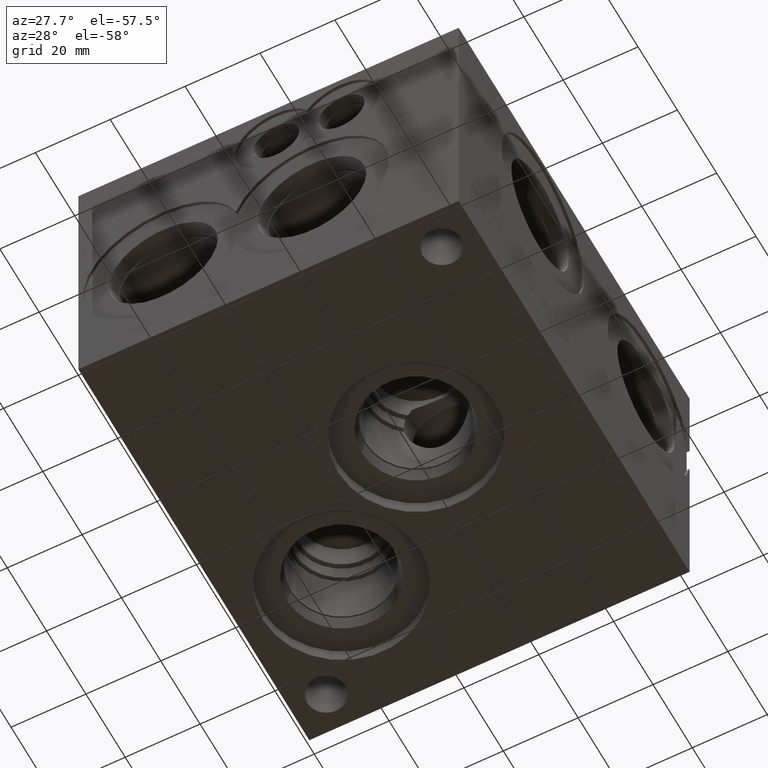
[diagram: clean part render]
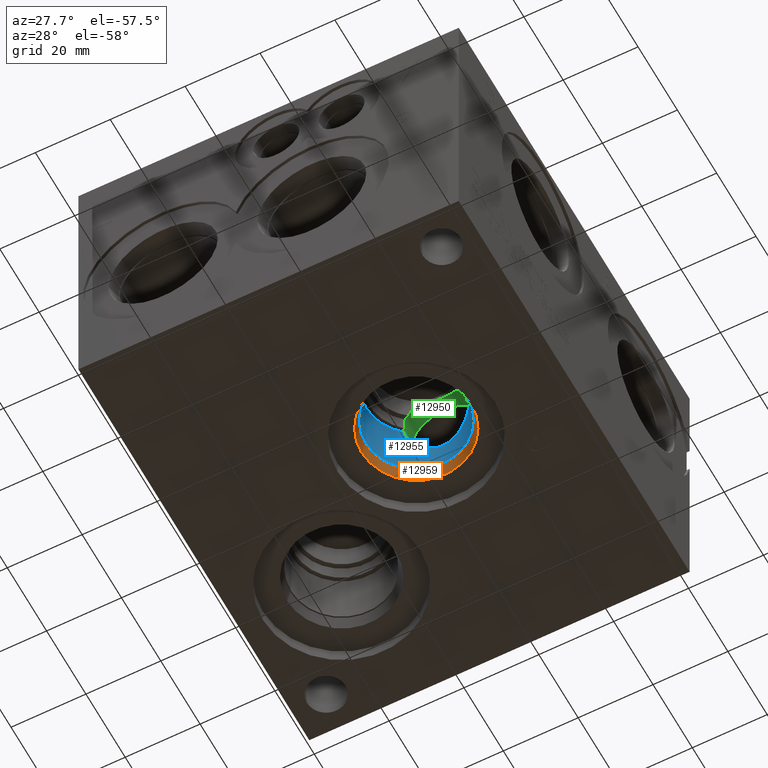
[diagram: same view with three faces highlighted in distinct colors, each labeled with its STEP entity id]
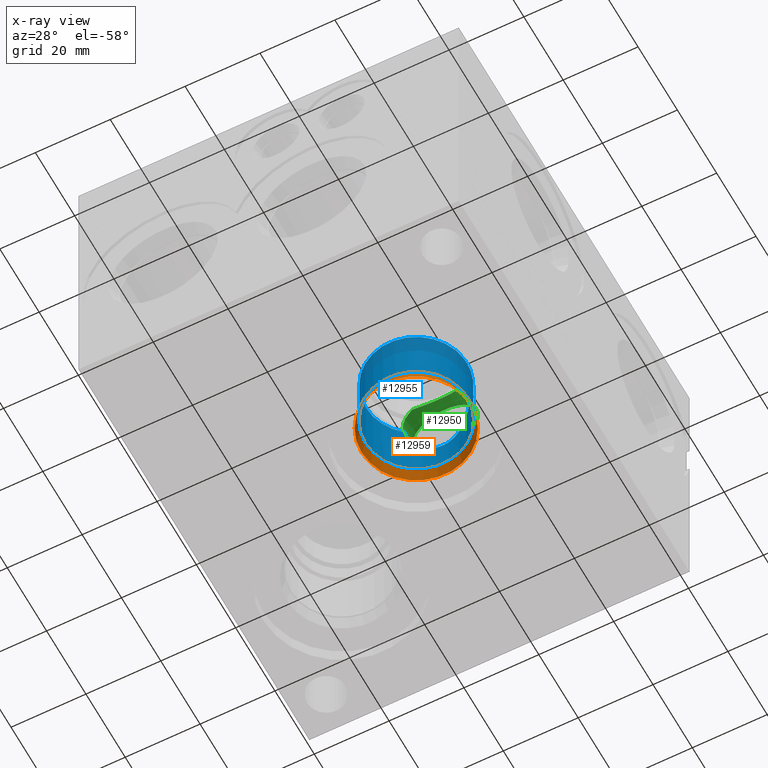
[diagram: x-ray of the same camera — body ghosted, the three highlighted faces saturated]
A machine part, auxiliary view with three faces highlighted in distinct colors.
The next image is the same camera in x-ray (body ghosted, the three faces saturated) — at least one of them is partly hidden behind the body in this view.
Their STEP definitions:

[orange] entity #12959 — the highlighted conical surface has half-angle 15.007 deg.
#94=CONICAL_SURFACE('',#13528,14.15415,0.261922137297759);
#177=CIRCLE('',#13526,14.5923);
#178=CIRCLE('',#13527,14.5923);
#179=CIRCLE('',#13529,13.716);
#180=CIRCLE('',#13530,13.716);
#1429=FACE_OUTER_BOUND('',#2149,.T.);
#2149=EDGE_LOOP('',(#10994,#10995,#10996,#10997,#10998,#10999));
#3457=LINE('',#21659,#4693);
#4693=VECTOR('',#15842,14.15415);
#6087=VERTEX_POINT('',#21653);
#6088=VERTEX_POINT('',#21654);
#6089=VERTEX_POINT('',#21658);
#6090=VERTEX_POINT('',#21660);
#7797=EDGE_CURVE('',#6087,#6088,#177,.T.);
#7798=EDGE_CURVE('',#6088,#6087,#178,.T.);
#7799=EDGE_CURVE('',#6088,#6089,#3457,.T.);
#7800=EDGE_CURVE('',#6089,#6090,#179,.T.);
#7801=EDGE_CURVE('',#6090,#6089,#180,.T.);
#10994=ORIENTED_EDGE('',*,*,#7797,.F.);
#10995=ORIENTED_EDGE('',*,*,#7798,.F.);
#10996=ORIENTED_EDGE('',*,*,#7799,.T.);
#10997=ORIENTED_EDGE('',*,*,#7800,.T.);
#10998=ORIENTED_EDGE('',*,*,#7801,.T.);
#10999=ORIENTED_EDGE('',*,*,#7799,.F.);
#12959=ADVANCED_FACE('',(#1429),#94,.F.);
#13526=AXIS2_PLACEMENT_3D('',#21655,#15836,#15837);
#13527=AXIS2_PLACEMENT_3D('',#21656,#15838,#15839);
#13528=AXIS2_PLACEMENT_3D('',#21657,#15840,#15841);
#13529=AXIS2_PLACEMENT_3D('',#21661,#15843,#15844);
#13530=AXIS2_PLACEMENT_3D('',#21662,#15845,#15846);
#15836=DIRECTION('center_axis',(0.,0.,1.));
#15837=DIRECTION('ref_axis',(1.,0.,0.));
#15838=DIRECTION('center_axis',(0.,0.,1.));
#15839=DIRECTION('ref_axis',(1.,0.,0.));
#15840=DIRECTION('center_axis',(0.,0.,-1.));
#15841=DIRECTION('ref_axis',(1.,0.,0.));
#15842=DIRECTION('',(0.258937610063224,3.17107115342792E-17,0.965894049104117));
#15843=DIRECTION('center_axis',(0.,0.,1.));
#15844=DIRECTION('ref_axis',(1.,0.,0.));
#15845=DIRECTION('center_axis',(0.,0.,1.));
#15846=DIRECTION('ref_axis',(1.,0.,0.));
#21653=CARTESIAN_POINT('',(76.5175,53.975,3.81));
#21654=CARTESIAN_POINT('',(47.3329,53.975,3.81));
#21655=CARTESIAN_POINT('Origin',(61.9252,53.975,3.81));
#21656=CARTESIAN_POINT('Origin',(61.9252,53.975,3.81));
#21657=CARTESIAN_POINT('Origin',(61.9252,53.975,5.44439555));
#21658=CARTESIAN_POINT('',(48.2092,53.975,7.0787911));
#21659=CARTESIAN_POINT('',(47.77105,53.975,5.44439555));
#21660=CARTESIAN_POINT('',(75.6412,53.975,7.0787911));
#21661=CARTESIAN_POINT('Origin',(61.9252,53.975,7.0787911));
#21662=CARTESIAN_POINT('Origin',(61.9252,53.975,7.0787911));

[blue] entity #12955 — the highlighted cylindrical surface (bore or boss wall) has radius 13.5001 mm, axis along (0, 0, -1).
#19=CYLINDRICAL_SURFACE('',#13519,13.5001);
#172=CIRCLE('',#13517,13.5001);
#173=CIRCLE('',#13518,13.5001);
#174=CIRCLE('',#13520,13.5001);
#1425=FACE_OUTER_BOUND('',#2144,.T.);
#2144=EDGE_LOOP('',(#10973,#10974,#10975,#10976,#10977,#10978));
#3455=LINE('',#21644,#4691);
#4691=VECTOR('',#15824,13.5001);
#5116=B_SPLINE_CURVE_WITH_KNOTS('',3,(#21575,#21576,#21577,#21578,#21579,
#21580,#21581,#21582,#21583,#21584,#21585,#21586,#21587,#21588,#21589,#21590,
#21591,#21592),.UNSPECIFIED.,.F.,.F.,(4,2,2,2,2,2,2,2,4),(0.0959618634930478,
0.343406973859113,0.686813947718226,1.02698033051328,1.36714671330834,1.7073130961034,
2.04747947889845,2.39088645275757,2.63833156312363),.UNSPECIFIED.);
#6076=VERTEX_POINT('',#21572);
#6077=VERTEX_POINT('',#21574);
#6083=VERTEX_POINT('',#21638);
#6084=VERTEX_POINT('',#21642);
#7778=EDGE_CURVE('',#6076,#6077,#5116,.T.);
#7790=EDGE_CURVE('',#6077,#6083,#172,.T.);
#7791=EDGE_CURVE('',#6083,#6076,#173,.T.);
#7792=EDGE_CURVE('',#6084,#6084,#174,.T.);
#7793=EDGE_CURVE('',#6084,#6083,#3455,.T.);
#10973=ORIENTED_EDGE('',*,*,#7792,.F.);
#10974=ORIENTED_EDGE('',*,*,#7793,.T.);
#10975=ORIENTED_EDGE('',*,*,#7790,.F.);
#10976=ORIENTED_EDGE('',*,*,#7778,.F.);
#10977=ORIENTED_EDGE('',*,*,#7791,.F.);
#10978=ORIENTED_EDGE('',*,*,#7793,.F.);
#12955=ADVANCED_FACE('',(#1425),#19,.F.);
#13517=AXIS2_PLACEMENT_3D('',#21639,#15816,#15817);
#13518=AXIS2_PLACEMENT_3D('',#21640,#15818,#15819);
#13519=AXIS2_PLACEMENT_3D('',#21641,#15820,#15821);
#13520=AXIS2_PLACEMENT_3D('',#21643,#15822,#15823);
#15816=DIRECTION('center_axis',(0.,0.,-1.));
#15817=DIRECTION('ref_axis',(1.,0.,0.));
#15818=DIRECTION('center_axis',(0.,0.,-1.));
#15819=DIRECTION('ref_axis',(1.,0.,0.));
#15820=DIRECTION('center_axis',(0.,0.,-1.));
#15821=DIRECTION('ref_axis',(1.,0.,0.));
#15822=DIRECTION('center_axis',(0.,0.,1.));
#15823=DIRECTION('ref_axis',(1.,0.,0.));
#15824=DIRECTION('',(0.,0.,1.));
#21572=CARTESIAN_POINT('',(53.2410740957999,64.3112786964168,22.86));
#21574=CARTESIAN_POINT('',(70.6093259042001,64.3112786964168,22.86));
#21575=CARTESIAN_POINT('Ctrl Pts',(53.2410740957999,64.3112786964168,22.86));
#21576=CARTESIAN_POINT('Ctrl Pts',(53.3334731132966,64.3889086370302,22.0286648348877));
#21577=CARTESIAN_POINT('Ctrl Pts',(53.5491929183386,64.5701936379758,21.2014063615222));
#21578=CARTESIAN_POINT('Ctrl Pts',(54.3227672111509,65.1450251675991,19.3654361316913));
#21579=CARTESIAN_POINT('Ctrl Pts',(54.9861785684347,65.5868248470164,18.4073890089741));
#21580=CARTESIAN_POINT('Ctrl Pts',(56.5002114888079,66.3661358733023,16.8933560886009));
#21581=CARTESIAN_POINT('Ctrl Pts',(57.4599560464925,66.7633398306517,16.2251192086186));
#21582=CARTESIAN_POINT('Ctrl Pts',(59.6045442094951,67.3202088128872,15.3214247406022));
#21583=CARTESIAN_POINT('Ctrl Pts',(60.7913120573498,67.4751,15.0876));
#21584=CARTESIAN_POINT('Ctrl Pts',(63.0590879426502,67.4751,15.0876));
#21585=CARTESIAN_POINT('Ctrl Pts',(64.2458557905048,67.3202088128872,15.3214247406022));
#21586=CARTESIAN_POINT('Ctrl Pts',(66.3904439535074,66.7633398306517,16.2251192086186));
#21587=CARTESIAN_POINT('Ctrl Pts',(67.3501885111921,66.3661358733023,16.8933560886009));
#21588=CARTESIAN_POINT('Ctrl Pts',(68.8642214315653,65.5868248470164,18.4073890089741));
#21589=CARTESIAN_POINT('Ctrl Pts',(69.5276327888491,65.1450251675991,19.3654361316913));
#21590=CARTESIAN_POINT('Ctrl Pts',(70.3012070816614,64.5701936379758,21.2014063615222));
#21591=CARTESIAN_POINT('Ctrl Pts',(70.5169268867034,64.3889086370302,22.0286648348877));
#21592=CARTESIAN_POINT('Ctrl Pts',(70.6093259042001,64.3112786964168,22.86));
#21638=CARTESIAN_POINT('',(48.4251,53.975,22.86));
#21639=CARTESIAN_POINT('Origin',(61.9252,53.975,22.86));
#21640=CARTESIAN_POINT('Origin',(61.9252,53.975,22.86));
#21641=CARTESIAN_POINT('Origin',(61.9252,53.975,11.43));
#21642=CARTESIAN_POINT('',(48.4251,53.975,7.3025));
#21643=CARTESIAN_POINT('Origin',(61.9252,53.975,7.3025));
#21644=CARTESIAN_POINT('',(48.4251,53.975,11.43));

[green] entity #12950 — the highlighted cylindrical surface (bore or boss wall) has radius 8.7376 mm, axis along (0, -1, 0).
#17=CYLINDRICAL_SURFACE('',#13505,8.7376);
#165=CIRCLE('',#13506,8.7376);
#166=CIRCLE('',#13507,8.7376);
#167=CIRCLE('',#13508,8.7376);
#168=CIRCLE('',#13509,8.7376);
#169=CIRCLE('',#13510,8.7376);
#1420=FACE_OUTER_BOUND('',#2139,.T.);
#2139=EDGE_LOOP('',(#10940,#10941,#10942,#10943,#10944,#10945,#10946,#10947,
#10948,#10949,#10950));
#3452=LINE('',#21569,#4688);
#3453=LINE('',#21573,#4689);
#3454=LINE('',#21594,#4690);
#4688=VECTOR('',#15795,8.7376);
#4689=VECTOR('',#15798,10.);
#4690=VECTOR('',#15799,10.);
#5114=B_SPLINE_CURVE_WITH_KNOTS('',3,(#21540,#21541,#21542,#21543,#21544,
#21545,#21546,#21547,#21548,#21549,#21550,#21551,#21552,#21553),
 .UNSPECIFIED.,.F.,.F.,(4,2,2,2,2,2,4),(3.49413911466993,3.49884400661786,
3.84393571895283,4.1890274312878,4.53411914362277,4.87921085595773,4.88391574790567),
 .UNSPECIFIED.);
#5116=B_SPLINE_CURVE_WITH_KNOTS('',3,(#21575,#21576,#21577,#21578,#21579,
#21580,#21581,#21582,#21583,#21584,#21585,#21586,#21587,#21588,#21589,#21590,
#21591,#21592),.UNSPECIFIED.,.F.,.F.,(4,2,2,2,2,2,2,2,4),(0.0959618634930478,
0.343406973859113,0.686813947718226,1.02698033051328,1.36714671330834,1.7073130961034,
2.04747947889845,2.39088645275757,2.63833156312363),.UNSPECIFIED.);
#6069=VERTEX_POINT('',#21532);
#6070=VERTEX_POINT('',#21539);
#6072=VERTEX_POINT('',#21564);
#6073=VERTEX_POINT('',#21565);
#6074=VERTEX_POINT('',#21568);
#6075=VERTEX_POINT('',#21570);
#6076=VERTEX_POINT('',#21572);
#6077=VERTEX_POINT('',#21574);
#6078=VERTEX_POINT('',#21593);
#7769=EDGE_CURVE('',#6070,#6069,#5114,.T.);
#7773=EDGE_CURVE('',#6072,#6073,#165,.T.);
#7774=EDGE_CURVE('',#6073,#6072,#166,.T.);
#7775=EDGE_CURVE('',#6073,#6074,#3452,.T.);
#7776=EDGE_CURVE('',#6074,#6075,#167,.T.);
#7777=EDGE_CURVE('',#6075,#6076,#3453,.T.);
#7778=EDGE_CURVE('',#6076,#6077,#5116,.T.);
#7779=EDGE_CURVE('',#6077,#6078,#3454,.T.);
#7780=EDGE_CURVE('',#6078,#6070,#168,.T.);
#7781=EDGE_CURVE('',#6069,#6074,#169,.T.);
#10940=ORIENTED_EDGE('',*,*,#7773,.F.);
#10941=ORIENTED_EDGE('',*,*,#7774,.F.);
#10942=ORIENTED_EDGE('',*,*,#7775,.T.);
#10943=ORIENTED_EDGE('',*,*,#7776,.T.);
#10944=ORIENTED_EDGE('',*,*,#7777,.T.);
#10945=ORIENTED_EDGE('',*,*,#7778,.T.);
#10946=ORIENTED_EDGE('',*,*,#7779,.T.);
#10947=ORIENTED_EDGE('',*,*,#7780,.T.);
#10948=ORIENTED_EDGE('',*,*,#7769,.T.);
#10949=ORIENTED_EDGE('',*,*,#7781,.T.);
#10950=ORIENTED_EDGE('',*,*,#7775,.F.);
#12950=ADVANCED_FACE('',(#1420),#17,.F.);
#13505=AXIS2_PLACEMENT_3D('',#21563,#15789,#15790);
#13506=AXIS2_PLACEMENT_3D('',#21566,#15791,#15792);
#13507=AXIS2_PLACEMENT_3D('',#21567,#15793,#15794);
#13508=AXIS2_PLACEMENT_3D('',#21571,#15796,#15797);
#13509=AXIS2_PLACEMENT_3D('',#21595,#15800,#15801);
#13510=AXIS2_PLACEMENT_3D('',#21596,#15802,#15803);
#15789=DIRECTION('center_axis',(0.,-1.,0.));
#15790=DIRECTION('ref_axis',(1.,0.,0.));
#15791=DIRECTION('center_axis',(0.,-1.,0.));
#15792=DIRECTION('ref_axis',(1.,0.,0.));
#15793=DIRECTION('center_axis',(0.,-1.,0.));
#15794=DIRECTION('ref_axis',(1.,0.,0.));
#15795=DIRECTION('',(0.,-1.,0.));
#15796=DIRECTION('center_axis',(0.,-1.,0.));
#15797=DIRECTION('ref_axis',(1.,0.,0.));
#15798=DIRECTION('',(0.,1.,0.));
#15799=DIRECTION('',(0.,-1.,0.));
#15800=DIRECTION('center_axis',(0.,-1.,0.));
#15801=DIRECTION('ref_axis',(1.,0.,0.));
#15802=DIRECTION('center_axis',(0.,-1.,0.));
#15803=DIRECTION('ref_axis',(1.,0.,0.));
#21532=CARTESIAN_POINT('',(55.7164965239708,63.6623443,29.9731797418943));
#21539=CARTESIAN_POINT('',(68.1339034760292,63.6623443,29.9731797418943));
#21540=CARTESIAN_POINT('Ctrl Pts',(68.1339034760292,63.6623443,29.9731797418943));
#21541=CARTESIAN_POINT('Ctrl Pts',(68.1238245713606,63.6688039579323,29.9833581961309));
#21542=CARTESIAN_POINT('Ctrl Pts',(68.1137286902729,63.6752523051251,29.9935037323182));
#21543=CARTESIAN_POINT('Ctrl Pts',(67.3618919113814,64.1538048308726,30.7453405112097));
#21544=CARTESIAN_POINT('Ctrl Pts',(66.4120560066326,64.6295161067148,31.4125446466823));
#21545=CARTESIAN_POINT('Ctrl Pts',(64.2700110651179,65.2954441612985,32.3223491302685));
#21546=CARTESIAN_POINT('Ctrl Pts',(63.0755057077832,65.4812,32.5628));
#21547=CARTESIAN_POINT('Ctrl Pts',(60.7748942922168,65.4812,32.5628));
#21548=CARTESIAN_POINT('Ctrl Pts',(59.5803889348821,65.2954441612985,32.3223491302685));
#21549=CARTESIAN_POINT('Ctrl Pts',(57.4383439933674,64.6295161067149,31.4125446466823));
#21550=CARTESIAN_POINT('Ctrl Pts',(56.4885080886186,64.1538048308726,30.7453405112097));
#21551=CARTESIAN_POINT('Ctrl Pts',(55.7366713097271,63.6752523051251,29.9935037323182));
#21552=CARTESIAN_POINT('Ctrl Pts',(55.7265754286394,63.6688039579323,29.9833581961309));
#21553=CARTESIAN_POINT('Ctrl Pts',(55.7164965239708,63.6623443,29.9731797418943));
#21563=CARTESIAN_POINT('Origin',(61.9252,66.18467215,23.8252));
#21564=CARTESIAN_POINT('',(70.6628,68.707,23.8252));
#21565=CARTESIAN_POINT('',(53.1876,68.707,23.8252));
#21566=CARTESIAN_POINT('Origin',(61.9252,68.707,23.8252));
#21567=CARTESIAN_POINT('Origin',(61.9252,68.707,23.8252));
#21568=CARTESIAN_POINT('',(53.1876,63.6623443,23.8252));
#21569=CARTESIAN_POINT('',(53.1876,66.18467215,23.8252));
#21570=CARTESIAN_POINT('',(53.2410740957999,63.6623443,22.86));
#21571=CARTESIAN_POINT('Origin',(61.9252,63.6623443,23.8252));
#21572=CARTESIAN_POINT('',(53.2410740957999,64.3112786964168,22.86));
#21573=CARTESIAN_POINT('',(53.2410740957999,66.18467215,22.86));
#21574=CARTESIAN_POINT('',(70.6093259042001,64.3112786964168,22.86));
#21575=CARTESIAN_POINT('Ctrl Pts',(53.2410740957999,64.3112786964168,22.86));
#21576=CARTESIAN_POINT('Ctrl Pts',(53.3334731132966,64.3889086370302,22.0286648348877));
#21577=CARTESIAN_POINT('Ctrl Pts',(53.5491929183386,64.5701936379758,21.2014063615222));
#21578=CARTESIAN_POINT('Ctrl Pts',(54.3227672111509,65.1450251675991,19.3654361316913));
#21579=CARTESIAN_POINT('Ctrl Pts',(54.9861785684347,65.5868248470164,18.4073890089741));
#21580=CARTESIAN_POINT('Ctrl Pts',(56.5002114888079,66.3661358733023,16.8933560886009));
#21581=CARTESIAN_POINT('Ctrl Pts',(57.4599560464925,66.7633398306517,16.2251192086186));
#21582=CARTESIAN_POINT('Ctrl Pts',(59.6045442094951,67.3202088128872,15.3214247406022));
#21583=CARTESIAN_POINT('Ctrl Pts',(60.7913120573498,67.4751,15.0876));
#21584=CARTESIAN_POINT('Ctrl Pts',(63.0590879426502,67.4751,15.0876));
#21585=CARTESIAN_POINT('Ctrl Pts',(64.2458557905048,67.3202088128872,15.3214247406022));
#21586=CARTESIAN_POINT('Ctrl Pts',(66.3904439535074,66.7633398306517,16.2251192086186));
#21587=CARTESIAN_POINT('Ctrl Pts',(67.3501885111921,66.3661358733023,16.8933560886009));
#21588=CARTESIAN_POINT('Ctrl Pts',(68.8642214315653,65.5868248470164,18.4073890089741));
#21589=CARTESIAN_POINT('Ctrl Pts',(69.5276327888491,65.1450251675991,19.3654361316913));
#21590=CARTESIAN_POINT('Ctrl Pts',(70.3012070816614,64.5701936379758,21.2014063615222));
#21591=CARTESIAN_POINT('Ctrl Pts',(70.5169268867034,64.3889086370302,22.0286648348877));
#21592=CARTESIAN_POINT('Ctrl Pts',(70.6093259042001,64.3112786964168,22.86));
#21593=CARTESIAN_POINT('',(70.6093259042001,63.6623443,22.86));
#21594=CARTESIAN_POINT('',(70.6093259042001,66.18467215,22.86));
#21595=CARTESIAN_POINT('Origin',(61.9252,63.6623443,23.8252));
#21596=CARTESIAN_POINT('Origin',(61.9252,63.6623443,23.8252));